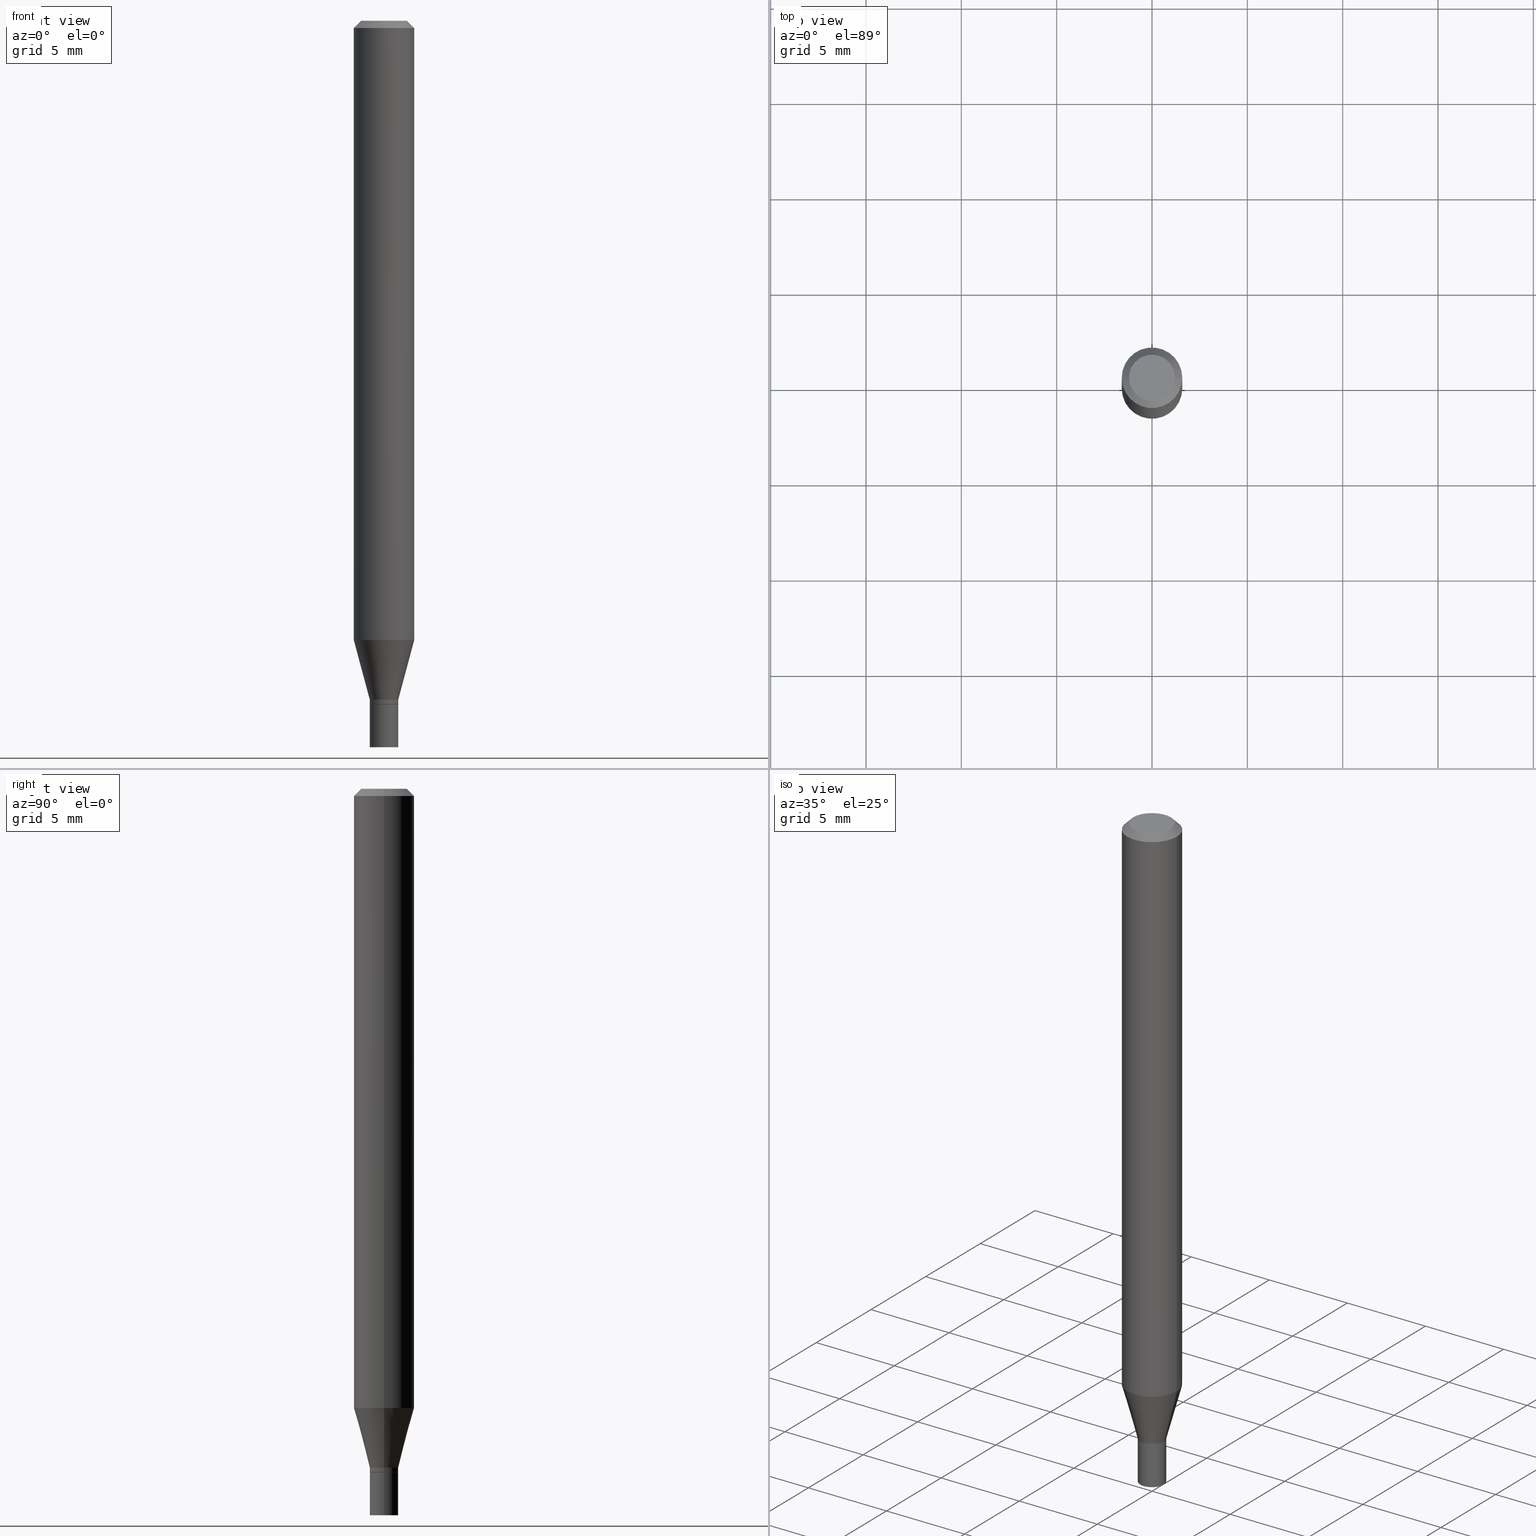
[diagram: canonical four-view strip — front | top / right | iso, engineering-drawing reading convention]
A machine part, canonical four-view strip (front | top / right | iso — engineering-drawing reading convention). The complete STEP part file that produces these views, byte-faithful:
ISO-10303-21;
HEADER;
FILE_DESCRIPTION (( 'STEP AP203' ),
    '1' );
FILE_NAME ('01139.STEP',
    '2024-03-19T23:17:24',
    ( '' ),
    ( '' ),
    'SwSTEP 2.0',
    'SolidWorks 2023',
    '' );
FILE_SCHEMA (( 'CONFIG_CONTROL_DESIGN' ));
ENDSEC;

DATA;
#1 = CARTESIAN_POINT ( 'NONE',  ( 3.427324531868468967E-29, -4.893311096388668563E-15, -1.401499999999999968 ) ) ;
#2 = DIRECTION ( 'NONE',  ( 1.000000000000000000, -6.982962677686265922E-15, 4.876176775795935793E-29 ) ) ;
#3 = CARTESIAN_POINT ( 'NONE',  ( 3.668203209277705088E-31, -5.237222008264718399E-17, -0.01499999999999999944 ) ) ;
#4 = ORIENTED_EDGE ( 'NONE', *, *, #452, .T. ) ;
#5 = EDGE_CURVE ( 'NONE', #227, #418, #371, .T. ) ;
#6 = CARTESIAN_POINT ( 'NONE',  ( -0.02949999999999999845, -4.873113851971679848E-15, -1.500000000000000222 ) ) ;
#7 = ORIENTED_EDGE ( 'NONE', *, *, #247, .F. ) ;
#8 = CIRCLE ( 'NONE', #141, 0.02899999999999999800 ) ;
#9 = CIRCLE ( 'NONE', #326, 0.02949999999999992212 ) ;
#10 = DIRECTION ( 'NONE',  ( -0.7071067811865656694, 7.493145998870420424E-15, 0.7071067811865294761 ) ) ;
#11 = PERSON_AND_ORGANIZATION_ROLE ( 'creator' ) ;
#12 = DIRECTION ( 'NONE',  ( 1.000000000000000000, -6.982962677686250933E-15, 0.000000000000000000 ) ) ;
#13 = CALENDAR_DATE ( 2024, 19, 3 ) ;
#14 = DIRECTION ( 'NONE',  ( -2.445468806185136597E-29, 3.491481338843145583E-15, 1.000000000000000000 ) ) ;
#15 = PERSON_AND_ORGANIZATION_ROLE ( 'design_owner' ) ;
#16 = COORDINATED_UNIVERSAL_TIME_OFFSET ( 5, 0, .BEHIND. ) ;
#17 = DIRECTION ( 'NONE',  ( -2.445468806185136877E-29, 3.491481338843145188E-15, 1.000000000000000000 ) ) ;
#18 = DIRECTION ( 'NONE',  ( -2.445468806185136597E-29, 3.491481338843145583E-15, 1.000000000000000000 ) ) ;
#19 = CYLINDRICAL_SURFACE ( 'NONE', #295, 0.06250000000000000000 ) ;
#20 = VERTEX_POINT ( 'NONE', #462 ) ;
#21 = ORGANIZATION ( 'UNSPECIFIED', 'UNSPECIFIED', '' ) ;
#22 = PERSON ( 'UNSPECIFIED', 'UNSPECIFIED', 'UNSPECIFIED', ('UNSPECIFIED'), ('UNSPECIFIED'), ('UNSPECIFIED') ) ;
#23 = VERTEX_POINT ( 'NONE', #185 ) ;
#24 = ORIENTED_EDGE ( 'NONE', *, *, #209, .T. ) ;
#25 = ORIENTED_EDGE ( 'NONE', *, *, #399, .F. ) ;
#26 = ORIENTED_EDGE ( 'NONE', *, *, #95, .T. ) ;
#27 = CARTESIAN_POINT ( 'NONE',  ( 3.668203209277705088E-31, -5.237222008264718399E-17, -0.01499999999999999944 ) ) ;
#28 = CARTESIAN_POINT ( 'NONE',  ( -0.02949999999999999845, 2.096101070492295438E-16, -1.451085851625197166E-30 ) ) ;
#29 = EDGE_CURVE ( 'NONE', #279, #169, #414, .T. ) ;
#30 = ORIENTED_EDGE ( 'NONE', *, *, #460, .F. ) ;
#31 = CYLINDRICAL_SURFACE ( 'NONE', #137, 0.02949999999999992559 ) ;
#32 = CC_DESIGN_SECURITY_CLASSIFICATION ( #350, ( #168 ) ) ;
#33 = CARTESIAN_POINT ( 'NONE',  ( 3.668203209277705088E-31, -5.237222008264718399E-17, -0.01499999999999999944 ) ) ;
#34 = ADVANCED_FACE ( 'NONE', ( #330 ), #212, .T. ) ;
#35 = CC_DESIGN_PERSON_AND_ORGANIZATION_ASSIGNMENT ( #116, #333, ( #168 ) ) ;
#36 = CARTESIAN_POINT ( 'NONE',  ( -0.02899999999999999800, -4.722168516406670975E-15, -1.411500000000000199 ) ) ;
#37 = ORIENTED_EDGE ( 'NONE', *, *, #314, .T. ) ;
#38 = FACE_OUTER_BOUND ( 'NONE', #48, .T. ) ;
#39 = DIRECTION ( 'NONE',  ( 1.000000000000000000, -6.982962677686250933E-15, 0.000000000000000000 ) ) ;
#40 = DIRECTION ( 'NONE',  ( 2.438088387897960049E-29, -3.491481338843145188E-15, -1.000000000000000000 ) ) ;
#41 = CALENDAR_DATE ( 2024, 19, 3 ) ;
#42 = DIRECTION ( 'NONE',  ( 1.000000000000000000, -6.982962677686250933E-15, 0.000000000000000000 ) ) ;
#43 = CIRCLE ( 'NONE', #269, 0.02949999999999999845 ) ;
#44 = FACE_OUTER_BOUND ( 'NONE', #319, .T. ) ;
#45 = CARTESIAN_POINT ( 'NONE',  ( 3.427324531868468967E-29, -4.893311096388668563E-15, -1.401499999999999968 ) ) ;
#46 = CARTESIAN_POINT ( 'NONE',  ( 0.000000000000000000, 0.000000000000000000, 0.000000000000000000 ) ) ;
#47 = EDGE_CURVE ( 'NONE', #424, #289, #464, .T. ) ;
#48 = EDGE_LOOP ( 'NONE', ( #384, #355, #348, #25 ) ) ;
#49 = PERSON_AND_ORGANIZATION_ROLE ( 'creator' ) ;
#50 = VECTOR ( 'NONE', #235, 39.37007874015748143 ) ;
#51 = ORIENTED_EDGE ( 'NONE', *, *, #47, .F. ) ;
#52 = FACE_OUTER_BOUND ( 'NONE', #135, .T. ) ;
#53 = EDGE_CURVE ( 'NONE', #418, #227, #335, .T. ) ;
#54 = EDGE_LOOP ( 'NONE', ( #60, #77 ) ) ;
#55 = ORIENTED_EDGE ( 'NONE', *, *, #199, .F. ) ;
#56 = AXIS2_PLACEMENT_3D ( 'NONE', #186, #327, #76 ) ;
#57 = EDGE_LOOP ( 'NONE', ( #205, #385, #361, #30 ) ) ;
#58 = CC_DESIGN_DATE_AND_TIME_ASSIGNMENT ( #450, #80, ( #244 ) ) ;
#59 = ADVANCED_FACE ( 'NONE', ( #401 ), #393, .F. ) ;
#60 = ORIENTED_EDGE ( 'NONE', *, *, #104, .T. ) ;
#61 = ORIENTED_EDGE ( 'NONE', *, *, #306, .F. ) ;
#62 = AXIS2_PLACEMENT_3D ( 'NONE', #192, #337, #12 ) ;
#63 = VECTOR ( 'NONE', #119, 39.37007874015748143 ) ;
#64 = DIRECTION ( 'NONE',  ( -2.445468806185136597E-29, 3.491481338843145583E-15, 1.000000000000000000 ) ) ;
#65 = ADVANCED_BREP_SHAPE_REPRESENTATION ( '01139', ( #425, #271, #453 ), #390 ) ;
#66 = DIRECTION ( 'NONE',  ( -1.000000000000000000, 6.982962677686265922E-15, -4.876176775795935793E-29 ) ) ;
#67 = DIRECTION ( 'NONE',  ( 1.000000000000000000, -6.982962677686267499E-15, 4.852736867747366768E-29 ) ) ;
#68 = CARTESIAN_POINT ( 'NONE',  ( 0.02949999999999999845, -5.134223308768844733E-15, -1.411500000000000199 ) ) ;
#69 = DIRECTION ( 'NONE',  ( 1.000000000000000000, -6.982962677686266711E-15, 0.000000000000000000 ) ) ;
#70 = APPLICATION_CONTEXT ( 'configuration controlled 3d designs of mechanical parts and assemblies' ) ;
#71 = LINE ( 'NONE', #28, #438 ) ;
#72 = AXIS2_PLACEMENT_3D ( 'NONE', #334, #328, #2 ) ;
#73 = CC_DESIGN_PERSON_AND_ORGANIZATION_ASSIGNMENT ( #239, #49, ( #244 ) ) ;
#74 = AXIS2_PLACEMENT_3D ( 'NONE', #341, #14, #303 ) ;
#75 = CARTESIAN_POINT ( 'NONE',  ( 0.02949999999999999845, -2.059973989917448413E-16, 1.438472148859800975E-30 ) ) ;
#76 = DIRECTION ( 'NONE',  ( 1.000000000000000000, -6.982962677686266711E-15, 0.000000000000000000 ) ) ;
#77 = ORIENTED_EDGE ( 'NONE', *, *, #83, .T. ) ;
#78 = CARTESIAN_POINT ( 'NONE',  ( 3.451779219930320513E-29, -4.928225909777100212E-15, -1.411500000000000199 ) ) ;
#79 = EDGE_LOOP ( 'NONE', ( #176, #321, #351, #61 ) ) ;
#80 = DATE_TIME_ROLE ( 'creation_date' ) ;
#81 = CARTESIAN_POINT ( 'NONE',  ( -0.06250000000000000000, -4.019219156780646826E-15, -1.278342323350227350 ) ) ;
#82 = UNCERTAINTY_MEASURE_WITH_UNIT (LENGTH_MEASURE( 1.000000000000000082E-05 ), #411, 'distance_accuracy_value', 'NONE');
#83 = EDGE_CURVE ( 'NONE', #317, #173, #286, .T. ) ;
#84 = LINE ( 'NONE', #156, #50 ) ;
#85 = CIRCLE ( 'NONE', #263, 0.02949999999999992212 ) ;
#86 = PERSON_AND_ORGANIZATION ( #22, #21 ) ;
#87 = DIRECTION ( 'NONE',  ( -1.000000000000000000, 6.982962677686265922E-15, -4.876176775795935793E-29 ) ) ;
#88 = DATE_AND_TIME ( #304, #253 ) ;
#89 = APPROVAL_DATE_TIME ( #307, #457 ) ;
#90 = APPROVAL_DATE_TIME ( #88, #162 ) ;
#91 = AXIS2_PLACEMENT_3D ( 'NONE', #196, #446, #238 ) ;
#92 = DIRECTION ( 'NONE',  ( -2.445468806185136597E-29, 3.491481338843145583E-15, 1.000000000000000000 ) ) ;
#93 = EDGE_LOOP ( 'NONE', ( #24, #283, #99, #353 ) ) ;
#94 = ORIENTED_EDGE ( 'NONE', *, *, #183, .T. ) ;
#95 = EDGE_CURVE ( 'NONE', #193, #170, #422, .T. ) ;
#96 = ORIENTED_EDGE ( 'NONE', *, *, #47, .T. ) ;
#97 = AXIS2_PLACEMENT_3D ( 'NONE', #293, #428, #291 ) ;
#98 = VECTOR ( 'NONE', #228, 39.37007874015748143 ) ;
#99 = ORIENTED_EDGE ( 'NONE', *, *, #5, .F. ) ;
#100 = DIRECTION ( 'NONE',  ( -2.445468806185136597E-29, 3.491481338843145583E-15, 1.000000000000000000 ) ) ;
#101 = CARTESIAN_POINT ( 'NONE',  ( 3.450556485527228832E-29, -4.926480169107679497E-15, -1.411000000000000254 ) ) ;
#102 = LOCAL_TIME ( 19, 17, 24.00000000000000000, #200 ) ;
#103 = DIRECTION ( 'NONE',  ( 1.000000000000000000, -6.982962677686267499E-15, 4.852736867747366768E-29 ) ) ;
#104 = EDGE_CURVE ( 'NONE', #173, #317, #349, .T. ) ;
#105 = DIRECTION ( 'NONE',  ( 2.445468806185136597E-29, -3.491481338843145583E-15, -1.000000000000000000 ) ) ;
#106 = DIRECTION ( 'NONE',  ( 1.000000000000000000, -6.982962677686266711E-15, 0.000000000000000000 ) ) ;
#107 = LINE ( 'NONE', #394, #98 ) ;
#108 = CARTESIAN_POINT ( 'NONE',  ( 3.126146275379214659E-29, -4.463308366630709442E-15, -1.278342323350227350 ) ) ;
#109 = ADVANCED_FACE ( 'NONE', ( #182 ), #218, .T. ) ;
#110 = CARTESIAN_POINT ( 'NONE',  ( 0.06250000000000000000, -4.888073874380388472E-16, -0.01499999999999999944 ) ) ;
#111 = AXIS2_PLACEMENT_3D ( 'NONE', #108, #430, #256 ) ;
#112 = AXIS2_PLACEMENT_3D ( 'NONE', #429, #142, #290 ) ;
#113 = AXIS2_PLACEMENT_3D ( 'NONE', #46, #198, #147 ) ;
#114 = CARTESIAN_POINT ( 'NONE',  ( 3.668203209277704895E-29, -5.237222008264718177E-15, -1.500000000000000222 ) ) ;
#115 = DIRECTION ( 'NONE',  ( 1.000000000000000000, -6.982962677686266711E-15, 0.000000000000000000 ) ) ;
#116 = PERSON_AND_ORGANIZATION ( #22, #21 ) ;
#117 = DIRECTION ( 'NONE',  ( 2.438088387897960049E-29, -3.491481338843145188E-15, -1.000000000000000000 ) ) ;
#118 = EDGE_CURVE ( 'NONE', #23, #279, #285, .T. ) ;
#119 = DIRECTION ( 'NONE',  ( -2.445468806185136877E-29, 3.491481338843145188E-15, 1.000000000000000000 ) ) ;
#120 = PERSON_AND_ORGANIZATION ( #22, #21 ) ;
#121 = CARTESIAN_POINT ( 'NONE',  ( 0.06250000000000000000, -4.899743533986101112E-15, -1.278342323350227350 ) ) ;
#122 = CARTESIAN_POINT ( 'NONE',  ( 0.000000000000000000, 0.000000000000000000, 0.000000000000000000 ) ) ;
#123 = APPROVAL_ROLE ( '' ) ;
#124 = FACE_OUTER_BOUND ( 'NONE', #229, .T. ) ;
#125 = AXIS2_PLACEMENT_3D ( 'NONE', #368, #40, #66 ) ;
#126 = LINE ( 'NONE', #203, #243 ) ;
#127 = LENGTH_MEASURE_WITH_UNIT ( LENGTH_MEASURE( 0.02539999999999999897 ), #155 );
#128 = APPROVAL_STATUS ( 'not_yet_approved' ) ;
#129 = DIRECTION ( 'NONE',  ( 1.000000000000000000, -6.982962677686268288E-15, 0.000000000000000000 ) ) ;
#130 = AXIS2_PLACEMENT_3D ( 'NONE', #27, #179, #106 ) ;
#131 = ORIENTED_EDGE ( 'NONE', *, *, #314, .F. ) ;
#132 = EDGE_CURVE ( 'NONE', #367, #221, #8, .T. ) ;
#133 = EDGE_LOOP ( 'NONE', ( #386, #139, #346, #461 ) ) ;
#134 = ORIENTED_EDGE ( 'NONE', *, *, #421, .T. ) ;
#135 = EDGE_LOOP ( 'NONE', ( #248, #264, #37, #315 ) ) ;
#136 = AXIS2_PLACEMENT_3D ( 'NONE', #403, #300, #375 ) ;
#137 = AXIS2_PLACEMENT_3D ( 'NONE', #240, #18, #451 ) ;
#138 = EDGE_CURVE ( 'NONE', #424, #359, #397, .T. ) ;
#139 = ORIENTED_EDGE ( 'NONE', *, *, #388, .T. ) ;
#140 = CARTESIAN_POINT ( 'NONE',  ( 3.584916967085606921E-29, -5.356492647442320375E-15, -1.500000000000000222 ) ) ;
#141 = AXIS2_PLACEMENT_3D ( 'NONE', #426, #100, #260 ) ;
#142 = DIRECTION ( 'NONE',  ( -2.445468806185136597E-29, 3.491481338843145583E-15, 1.000000000000000000 ) ) ;
#143 = LOCAL_TIME ( 19, 17, 24.00000000000000000, #16 ) ;
#144 = DIRECTION ( 'NONE',  ( -2.445468806185136597E-29, 3.491481338843145583E-15, 1.000000000000000000 ) ) ;
#145 = DIRECTION ( 'NONE',  ( -0.2588190451025216832, 5.211531920934551831E-15, 0.9659258262890679791 ) ) ;
#146 = EDGE_LOOP ( 'NONE', ( #55, #436, #211, #391 ) ) ;
#147 = DIRECTION ( 'NONE',  ( 1.000000000000000000, -6.982962677686267499E-15, 4.876176775795935793E-29 ) ) ;
#148 = CARTESIAN_POINT ( 'NONE',  ( 3.427324531868468967E-29, -4.893311096388668563E-15, -1.401499999999999968 ) ) ;
#149 = DIRECTION ( 'NONE',  ( 1.000000000000000000, -6.982962677686265922E-15, 4.876176775795935793E-29 ) ) ;
#150 = CIRCLE ( 'NONE', #56, 0.02899999999999999800 ) ;
#151 = DIRECTION ( 'NONE',  ( -2.445468806185136597E-29, 3.491481338843145583E-15, 1.000000000000000000 ) ) ;
#152 = LINE ( 'NONE', #296, #459 ) ;
#153 = SECURITY_CLASSIFICATION_LEVEL ( 'unclassified' ) ;
#154 = CYLINDRICAL_SURFACE ( 'NONE', #74, 0.06250000000000000000 ) ;
#155 =( LENGTH_UNIT ( ) NAMED_UNIT ( * ) SI_UNIT ( $, .METRE. ) );
#156 = CARTESIAN_POINT ( 'NONE',  ( 0.06250000000000000000, -4.811533449433679005E-16, -0.01499999999999999944 ) ) ;
#157 = CC_DESIGN_DATE_AND_TIME_ASSIGNMENT ( #442, #345, ( #350 ) ) ;
#158 = DIRECTION ( 'NONE',  ( -2.438088387897960049E-29, 3.491481338843145188E-15, 1.000000000000000000 ) ) ;
#159 = CALENDAR_DATE ( 2024, 19, 3 ) ;
#160 = LINE ( 'NONE', #342, #275 ) ;
#161 = AXIS2_PLACEMENT_3D ( 'NONE', #78, #357, #115 ) ;
#162 = APPROVAL ( #236, 'UNSPECIFIED' ) ;
#163 = DIRECTION ( 'NONE',  ( -2.445468806185136597E-29, 3.491481338843145583E-15, 1.000000000000000000 ) ) ;
#164 = ADVANCED_FACE ( 'NONE', ( #407 ), #343, .T. ) ;
#165 = EDGE_CURVE ( 'NONE', #367, #23, #266, .T. ) ;
#166 = DIRECTION ( 'NONE',  ( 0.000000000000000000, 0.000000000000000000, 1.000000000000000000 ) ) ;
#167 = AXIS2_PLACEMENT_3D ( 'NONE', #33, #322, #69 ) ;
#168 = PRODUCT_DEFINITION_FORMATION_WITH_SPECIFIED_SOURCE ( 'ANY', '', #249, .NOT_KNOWN. ) ;
#169 = VERTEX_POINT ( 'NONE', #308 ) ;
#170 = VERTEX_POINT ( 'NONE', #121 ) ;
#171 = ORIENTED_EDGE ( 'NONE', *, *, #388, .F. ) ;
#172 = EDGE_CURVE ( 'NONE', #193, #418, #160, .T. ) ;
#173 = VERTEX_POINT ( 'NONE', #267 ) ;
#174 = ORIENTED_EDGE ( 'NONE', *, *, #53, .F. ) ;
#175 = AXIS2_PLACEMENT_3D ( 'NONE', #3, #105, #257 ) ;
#176 = ORIENTED_EDGE ( 'NONE', *, *, #358, .F. ) ;
#177 = APPROVAL ( #234, 'UNSPECIFIED' ) ;
#178 = FACE_OUTER_BOUND ( 'NONE', #79, .T. ) ;
#179 = DIRECTION ( 'NONE',  ( -2.445468806185136597E-29, 3.491481338843145583E-15, 1.000000000000000000 ) ) ;
#180 = DIRECTION ( 'NONE',  ( -2.445468806185136597E-29, 3.491481338843145583E-15, 1.000000000000000000 ) ) ;
#181 = CC_DESIGN_APPROVAL ( #177, ( #168 ) ) ;
#182 = FACE_OUTER_BOUND ( 'NONE', #352, .T. ) ;
#183 = EDGE_CURVE ( 'NONE', #359, #458, #398, .T. ) ;
#184 = CARTESIAN_POINT ( 'NONE',  ( 0.02949999999999999845, -5.443219407256462698E-15, -1.500000000000000222 ) ) ;
#185 = CARTESIAN_POINT ( 'NONE',  ( 0.02949999999999992212, -5.132477568099423229E-15, -1.411000000000000254 ) ) ;
#186 = CARTESIAN_POINT ( 'NONE',  ( 3.451779219930320513E-29, -4.928225909777100212E-15, -1.411500000000000199 ) ) ;
#187 = CC_DESIGN_PERSON_AND_ORGANIZATION_ASSIGNMENT ( #299, #237, ( #350 ) ) ;
#188 = APPROVAL_DATE_TIME ( #410, #177 ) ;
#189 = DIRECTION ( 'NONE',  ( -2.445468806185136597E-29, 3.491481338843145583E-15, 1.000000000000000000 ) ) ;
#190 = CYLINDRICAL_SURFACE ( 'NONE', #233, 0.02949999999999999845 ) ;
#191 = APPROVAL_PERSON_ORGANIZATION ( #86, #162, #376 ) ;
#192 = CARTESIAN_POINT ( 'NONE',  ( 3.451779219930320513E-29, -4.928225909777100212E-15, -1.411500000000000199 ) ) ;
#193 = VERTEX_POINT ( 'NONE', #81 ) ;
#194 = MECHANICAL_CONTEXT ( 'NONE', #419, 'mechanical' ) ;
#195 = ADVANCED_FACE ( 'NONE', ( #297 ), #404, .F. ) ;
#196 = CARTESIAN_POINT ( 'NONE',  ( 3.126146275379214659E-29, -4.463308366630709442E-15, -1.278342323350227350 ) ) ;
#197 = COORDINATED_UNIVERSAL_TIME_OFFSET ( 5, 0, .BEHIND. ) ;
#198 = DIRECTION ( 'NONE',  ( -2.445468806185136597E-29, 3.491481338843145583E-15, 1.000000000000000000 ) ) ;
#199 = EDGE_CURVE ( 'NONE', #317, #227, #84, .T. ) ;
#200 = COORDINATED_UNIVERSAL_TIME_OFFSET ( 5, 0, .BEHIND. ) ;
#201 = AXIS2_PLACEMENT_3D ( 'NONE', #148, #64, #252 ) ;
#202 = CONICAL_SURFACE ( 'NONE', #175, 0.06250000000000000000, 0.7853981633974567167 ) ;
#203 = CARTESIAN_POINT ( 'NONE',  ( -0.06250000000000000000, 3.840629472727444916E-16, -0.01499999999999999944 ) ) ;
#204 = DIRECTION ( 'NONE',  ( 1.000000000000000000, -6.982962677686265922E-15, 4.876176775795935793E-29 ) ) ;
#205 = ORIENTED_EDGE ( 'NONE', *, *, #83, .F. ) ;
#206 = AXIS2_PLACEMENT_3D ( 'NONE', #440, #117, #87 ) ;
#207 = APPROVAL_PERSON_ORGANIZATION ( #120, #457, #374 ) ;
#208 = EDGE_LOOP ( 'NONE', ( #94, #251 ) ) ;
#209 = EDGE_CURVE ( 'NONE', #170, #193, #294, .T. ) ;
#210 = ORIENTED_EDGE ( 'NONE', *, *, #29, .T. ) ;
#211 = ORIENTED_EDGE ( 'NONE', *, *, #460, .T. ) ;
#212 = CONICAL_SURFACE ( 'NONE', #97, 0.06250000000000000000, 0.7853981633974567167 ) ;
#213 = EDGE_LOOP ( 'NONE', ( #210, #365, #420, #131 ) ) ;
#214 = EDGE_CURVE ( 'NONE', #458, #359, #354, .T. ) ;
#215 = CARTESIAN_POINT ( 'NONE',  ( 0.02949999999999992559, -2.059973989917443730E-16, 1.438472148859797472E-30 ) ) ;
#216 = ADVANCED_FACE ( 'NONE', ( #44 ), #154, .T. ) ;
#217 = CARTESIAN_POINT ( 'NONE',  ( 0.02899999999999999800, -5.130731827430002515E-15, -1.411500000000000199 ) ) ;
#218 = CYLINDRICAL_SURFACE ( 'NONE', #72, 0.02949999999999999845 ) ;
#219 = DIRECTION ( 'NONE',  ( -2.445468806185136597E-29, 3.491481338843145583E-15, 1.000000000000000000 ) ) ;
#220 = ADVANCED_FACE ( 'NONE', ( #124 ), #270, .T. ) ;
#221 = VERTEX_POINT ( 'NONE', #364 ) ;
#222 = VECTOR ( 'NONE', #443, 39.37007874015748143 ) ;
#223 = PLANE ( 'NONE',  #125 ) ;
#224 = AXIS2_PLACEMENT_3D ( 'NONE', #274, #158, #204 ) ;
#225 = ORIENTED_EDGE ( 'NONE', *, *, #138, .F. ) ;
#226 = DIRECTION ( 'NONE',  ( -2.445468806185136877E-29, 3.491481338843145188E-15, 1.000000000000000000 ) ) ;
#227 = VERTEX_POINT ( 'NONE', #110 ) ;
#228 = DIRECTION ( 'NONE',  ( -2.445468806185136877E-29, 3.491481338843145188E-15, 1.000000000000000000 ) ) ;
#229 = EDGE_LOOP ( 'NONE', ( #134, #284, #408, #383 ) ) ;
#230 = PERSON_AND_ORGANIZATION ( #22, #21 ) ;
#231 = CARTESIAN_POINT ( 'NONE',  ( 0.02899999999999999800, -5.130731827430002515E-15, -1.411500000000000199 ) ) ;
#232 = EDGE_CURVE ( 'NONE', #169, #193, #396, .T. ) ;
#233 = AXIS2_PLACEMENT_3D ( 'NONE', #288, #435, #149 ) ;
#234 = APPROVAL_STATUS ( 'not_yet_approved' ) ;
#235 = DIRECTION ( 'NONE',  ( 0.7071067811865534569, -7.319954787623276556E-15, -0.7071067811865415775 ) ) ;
#236 = APPROVAL_STATUS ( 'not_yet_approved' ) ;
#237 = PERSON_AND_ORGANIZATION_ROLE ( 'classification_officer' ) ;
#238 = DIRECTION ( 'NONE',  ( 1.000000000000000000, -6.982962677686262766E-15, 0.000000000000000000 ) ) ;
#239 = PERSON_AND_ORGANIZATION ( #22, #21 ) ;
#240 = CARTESIAN_POINT ( 'NONE',  ( 0.000000000000000000, 0.000000000000000000, 0.000000000000000000 ) ) ;
#241 = VECTOR ( 'NONE', #356, 39.37007874015748143 ) ;
#242 = PERSON_AND_ORGANIZATION ( #22, #21 ) ;
#243 = VECTOR ( 'NONE', #347, 39.37007874015748143 ) ;
#244 = PRODUCT_DEFINITION ( 'UNKNOWN', '', #168, #373 ) ;
#245 = ORIENTED_EDGE ( 'NONE', *, *, #172, .F. ) ;
#246 = ORIENTED_EDGE ( 'NONE', *, *, #132, .F. ) ;
#247 = EDGE_CURVE ( 'NONE', #221, #367, #150, .T. ) ;
#248 = ORIENTED_EDGE ( 'NONE', *, *, #232, .F. ) ;
#249 = PRODUCT ( '01139', '01139', '', ( #194 ) ) ;
#250 = PRODUCT_RELATED_PRODUCT_CATEGORY ( 'detail', '', ( #249 ) ) ;
#251 = ORIENTED_EDGE ( 'NONE', *, *, #214, .T. ) ;
#252 = DIRECTION ( 'NONE',  ( 1.000000000000000000, -6.982962677686268288E-15, 0.000000000000000000 ) ) ;
#253 = LOCAL_TIME ( 19, 17, 24.00000000000000000, #197 ) ;
#254 = CARTESIAN_POINT ( 'NONE',  ( -0.06250000000000000000, -1.813751083506615842E-15, -0.01499999999999999944 ) ) ;
#255 = CC_DESIGN_PERSON_AND_ORGANIZATION_ASSIGNMENT ( #230, #11, ( #168 ) ) ;
#256 = DIRECTION ( 'NONE',  ( 1.000000000000000000, -6.982962677686262766E-15, 0.000000000000000000 ) ) ;
#257 = DIRECTION ( 'NONE',  ( -1.000000000000000000, 6.982962677686266711E-15, 0.000000000000000000 ) ) ;
#258 = DIRECTION ( 'NONE',  ( 1.000000000000000000, -6.982962677686265922E-15, 4.876176775795935793E-29 ) ) ;
#259 = LINE ( 'NONE', #36, #372 ) ;
#260 = DIRECTION ( 'NONE',  ( 1.000000000000000000, -6.982962677686266711E-15, 0.000000000000000000 ) ) ;
#261 = AXIS2_PLACEMENT_3D ( 'NONE', #377, #151, #42 ) ;
#262 = DIRECTION ( 'NONE',  ( 0.2588190451025216832, 1.565188264969619798E-15, 0.9659258262890679791 ) ) ;
#263 = AXIS2_PLACEMENT_3D ( 'NONE', #101, #219, #360 ) ;
#264 = ORIENTED_EDGE ( 'NONE', *, *, #306, .T. ) ;
#265 = DIRECTION ( 'NONE',  ( 1.000000000000000000, -6.982962677686268288E-15, 0.000000000000000000 ) ) ;
#266 = LINE ( 'NONE', #231, #222 ) ;
#267 = CARTESIAN_POINT ( 'NONE',  ( -0.04749999999999999362, 3.578768372314206562E-16, -2.491828921680056300E-16 ) ) ;
#268 = PERSON_AND_ORGANIZATION ( #22, #21 ) ;
#269 = AXIS2_PLACEMENT_3D ( 'NONE', #329, #298, #400 ) ;
#270 = CYLINDRICAL_SURFACE ( 'NONE', #113, 0.02949999999999992559 ) ;
#271 = MANIFOLD_SOLID_BREP ( 'Body-Move/Copy2[2]', #318 ) ;
#272 = CARTESIAN_POINT ( 'NONE',  ( 0.000000000000000000, 0.000000000000000000, 0.000000000000000000 ) ) ;
#273 = SHAPE_DEFINITION_REPRESENTATION ( #332, #65 ) ;
#274 = CARTESIAN_POINT ( 'NONE',  ( 3.451779219930320513E-29, -4.928225909777100212E-15, -1.411500000000000199 ) ) ;
#275 = VECTOR ( 'NONE', #370, 39.37007874015748143 ) ;
#276 = CIRCLE ( 'NONE', #416, 0.02949999999999992559 ) ;
#277 = ORIENTED_EDGE ( 'NONE', *, *, #312, .T. ) ;
#278 = DIMENSIONAL_EXPONENTS ( 1.000000000000000000, 0.000000000000000000, 0.000000000000000000, 0.000000000000000000, 0.000000000000000000, 0.000000000000000000, 0.000000000000000000 ) ;
#279 = VERTEX_POINT ( 'NONE', #336 ) ;
#280 = ORIENTED_EDGE ( 'NONE', *, *, #421, .F. ) ;
#281 = CC_DESIGN_PERSON_AND_ORGANIZATION_ASSIGNMENT ( #268, #15, ( #249 ) ) ;
#282 = CLOSED_SHELL ( 'NONE', ( #109, #59, #309, #427 ) ) ;
#283 = ORIENTED_EDGE ( 'NONE', *, *, #172, .T. ) ;
#284 = ORIENTED_EDGE ( 'NONE', *, *, #358, .T. ) ;
#285 = LINE ( 'NONE', #215, #241 ) ;
#286 = CIRCLE ( 'NONE', #362, 0.04749999999999999362 ) ;
#287 = APPROVAL_PERSON_ORGANIZATION ( #242, #177, #123 ) ;
#288 = CARTESIAN_POINT ( 'NONE',  ( 0.000000000000000000, 0.000000000000000000, 0.000000000000000000 ) ) ;
#289 = VERTEX_POINT ( 'NONE', #6 ) ;
#290 = DIRECTION ( 'NONE',  ( 1.000000000000000000, -6.982962677686266711E-15, 0.000000000000000000 ) ) ;
#291 = DIRECTION ( 'NONE',  ( -1.000000000000000000, 6.982962677686266711E-15, 0.000000000000000000 ) ) ;
#292 = DIRECTION ( 'NONE',  ( -2.445468806185136597E-29, 3.491481338843145583E-15, 1.000000000000000000 ) ) ;
#293 = CARTESIAN_POINT ( 'NONE',  ( 3.668203209277705088E-31, -5.237222008264718399E-17, -0.01499999999999999944 ) ) ;
#294 = CIRCLE ( 'NONE', #91, 0.06250000000000000000 ) ;
#295 = AXIS2_PLACEMENT_3D ( 'NONE', #272, #92, #409 ) ;
#296 = CARTESIAN_POINT ( 'NONE',  ( 0.02949999999999992559, -5.099308495380413084E-15, -1.401499999999999968 ) ) ;
#297 = FACE_OUTER_BOUND ( 'NONE', #54, .T. ) ;
#298 = DIRECTION ( 'NONE',  ( -2.445468806185136597E-29, 3.491481338843145583E-15, 1.000000000000000000 ) ) ;
#299 = PERSON_AND_ORGANIZATION ( #22, #21 ) ;
#300 = DIRECTION ( 'NONE',  ( -2.445468806185136597E-29, 3.491481338843145583E-15, 1.000000000000000000 ) ) ;
#301 = LINE ( 'NONE', #415, #63 ) ;
#302 = COORDINATED_UNIVERSAL_TIME_OFFSET ( 5, 0, .BEHIND. ) ;
#303 = DIRECTION ( 'NONE',  ( 1.000000000000000000, -6.982962677686266711E-15, 4.876176775795935793E-29 ) ) ;
#304 = CALENDAR_DATE ( 2024, 19, 3 ) ;
#305 = AXIS2_PLACEMENT_3D ( 'NONE', #114, #466, #39 ) ;
#306 = EDGE_CURVE ( 'NONE', #169, #279, #276, .T. ) ;
#307 = DATE_AND_TIME ( #159, #465 ) ;
#308 = CARTESIAN_POINT ( 'NONE',  ( -0.02949999999999992559, -4.351460073060043416E-15, -1.401499999999999968 ) ) ;
#309 = ADVANCED_FACE ( 'NONE', ( #402 ), #190, .T. ) ;
#310 = PLANE ( 'NONE',  #224 ) ;
#311 = CARTESIAN_POINT ( 'NONE',  ( -0.02949999999999999845, -4.873113851971679848E-15, -1.411500000000000199 ) ) ;
#312 = EDGE_CURVE ( 'NONE', #221, #20, #259, .T. ) ;
#313 = CC_DESIGN_APPROVAL ( #162, ( #244 ) ) ;
#314 = EDGE_CURVE ( 'NONE', #279, #170, #152, .T. ) ;
#315 = ORIENTED_EDGE ( 'NONE', *, *, #95, .F. ) ;
#316 = ORIENTED_EDGE ( 'NONE', *, *, #413, .T. ) ;
#317 = VERTEX_POINT ( 'NONE', #439 ) ;
#318 = CLOSED_SHELL ( 'NONE', ( #220, #340, #325, #454, #164, #432, #216, #34, #195, #444, #320, #431 ) ) ;
#319 = EDGE_LOOP ( 'NONE', ( #245, #26, #4, #174 ) ) ;
#320 = ADVANCED_FACE ( 'NONE', ( #38 ), #382, .T. ) ;
#321 = ORIENTED_EDGE ( 'NONE', *, *, #399, .T. ) ;
#322 = DIRECTION ( 'NONE',  ( -2.445468806185136597E-29, 3.491481338843145583E-15, 1.000000000000000000 ) ) ;
#323 = FACE_OUTER_BOUND ( 'NONE', #208, .T. ) ;
#324 = DIRECTION ( 'NONE',  ( -2.438088387897960049E-29, 3.491481338843145188E-15, 1.000000000000000000 ) ) ;
#325 = ADVANCED_FACE ( 'NONE', ( #463 ), #202, .T. ) ;
#326 = AXIS2_PLACEMENT_3D ( 'NONE', #392, #180, #366 ) ;
#327 = DIRECTION ( 'NONE',  ( -2.445468806185136597E-29, 3.491481338843145583E-15, 1.000000000000000000 ) ) ;
#328 = DIRECTION ( 'NONE',  ( -2.445468806185136597E-29, 3.491481338843145583E-15, 1.000000000000000000 ) ) ;
#329 = CARTESIAN_POINT ( 'NONE',  ( 3.668203209277704895E-29, -5.237222008264718177E-15, -1.500000000000000222 ) ) ;
#330 = FACE_OUTER_BOUND ( 'NONE', #146, .T. ) ;
#331 = CARTESIAN_POINT ( 'NONE',  ( -0.02949999999999992559, -4.683700989339440005E-15, -1.401499999999999968 ) ) ;
#332 = PRODUCT_DEFINITION_SHAPE ( 'NONE', 'NONE',  #244 ) ;
#333 = PERSON_AND_ORGANIZATION_ROLE ( 'design_supplier' ) ;
#334 = CARTESIAN_POINT ( 'NONE',  ( 0.000000000000000000, 0.000000000000000000, 0.000000000000000000 ) ) ;
#335 = CIRCLE ( 'NONE', #130, 0.06250000000000000000 ) ;
#336 = CARTESIAN_POINT ( 'NONE',  ( 0.02949999999999992559, -5.099308495380413084E-15, -1.401499999999999968 ) ) ;
#337 = DIRECTION ( 'NONE',  ( -2.445468806185136597E-29, 3.491481338843145583E-15, 1.000000000000000000 ) ) ;
#338 = ORIENTED_EDGE ( 'NONE', *, *, #183, .F. ) ;
#339 =( NAMED_UNIT ( * ) SI_UNIT ( $, .STERADIAN. ) SOLID_ANGLE_UNIT ( ) );
#340 = ADVANCED_FACE ( 'NONE', ( #433 ), #363, .T. ) ;
#341 = CARTESIAN_POINT ( 'NONE',  ( 0.000000000000000000, 0.000000000000000000, 0.000000000000000000 ) ) ;
#342 = CARTESIAN_POINT ( 'NONE',  ( -0.06250000000000000000, 4.440892098500626162E-16, -3.074334431409316114E-30 ) ) ;
#343 = CONICAL_SURFACE ( 'NONE', #136, 0.02949999999999992559, 0.2617993877991502960 ) ;
#344 = VECTOR ( 'NONE', #145, 39.37007874015748143 ) ;
#345 = DATE_TIME_ROLE ( 'classification_date' ) ;
#346 = ORIENTED_EDGE ( 'NONE', *, *, #138, .T. ) ;
#347 = DIRECTION ( 'NONE',  ( -0.7071067811865534569, 2.468850131082318986E-15, -0.7071067811865415775 ) ) ;
#348 = ORIENTED_EDGE ( 'NONE', *, *, #165, .T. ) ;
#349 = CIRCLE ( 'NONE', #437, 0.04749999999999999362 ) ;
#350 = SECURITY_CLASSIFICATION ( '', '', #153 ) ;
#351 = ORIENTED_EDGE ( 'NONE', *, *, #118, .T. ) ;
#352 = EDGE_LOOP ( 'NONE', ( #96, #316, #338, #225 ) ) ;
#353 = ORIENTED_EDGE ( 'NONE', *, *, #452, .F. ) ;
#354 = CIRCLE ( 'NONE', #62, 0.02949999999999999845 ) ;
#355 = ORIENTED_EDGE ( 'NONE', *, *, #247, .T. ) ;
#356 = DIRECTION ( 'NONE',  ( -2.445468806185136877E-29, 3.491481338843145188E-15, 1.000000000000000000 ) ) ;
#357 = DIRECTION ( 'NONE',  ( -2.445468806185136597E-29, 3.491481338843145583E-15, 1.000000000000000000 ) ) ;
#358 = EDGE_CURVE ( 'NONE', #20, #169, #107, .T. ) ;
#359 = VERTEX_POINT ( 'NONE', #68 ) ;
#360 = DIRECTION ( 'NONE',  ( 1.000000000000000000, -6.982962677686269077E-15, 0.000000000000000000 ) ) ;
#361 = ORIENTED_EDGE ( 'NONE', *, *, #5, .T. ) ;
#362 = AXIS2_PLACEMENT_3D ( 'NONE', #434, #144, #103 ) ;
#363 = CONICAL_SURFACE ( 'NONE', #161, 0.02899999999999999800, 0.7853981633974739252 ) ;
#364 = CARTESIAN_POINT ( 'NONE',  ( -0.02899999999999999800, -4.719519289232561352E-15, -1.411500000000000199 ) ) ;
#365 = ORIENTED_EDGE ( 'NONE', *, *, #232, .T. ) ;
#366 = DIRECTION ( 'NONE',  ( 1.000000000000000000, -6.982962677686269077E-15, 0.000000000000000000 ) ) ;
#367 = VERTEX_POINT ( 'NONE', #217 ) ;
#368 = CARTESIAN_POINT ( 'NONE',  ( 2.059973989917793540E-16, 0.02949999999999506836, -1.411500000000000199 ) ) ;
#369 = COORDINATED_UNIVERSAL_TIME_OFFSET ( 5, 0, .BEHIND. ) ;
#370 = DIRECTION ( 'NONE',  ( -2.445468806185136877E-29, 3.491481338843145188E-15, 1.000000000000000000 ) ) ;
#371 = CIRCLE ( 'NONE', #167, 0.06250000000000000000 ) ;
#372 = VECTOR ( 'NONE', #10, 39.37007874015748143 ) ;
#373 = DESIGN_CONTEXT ( 'detailed design', #70, 'design' ) ;
#374 = APPROVAL_ROLE ( '' ) ;
#375 = DIRECTION ( 'NONE',  ( 1.000000000000000000, -6.982962677686268288E-15, 0.000000000000000000 ) ) ;
#376 = APPROVAL_ROLE ( '' ) ;
#377 = CARTESIAN_POINT ( 'NONE',  ( 3.451779219930320513E-29, -4.928225909777100212E-15, -1.411500000000000199 ) ) ;
#378 = EDGE_LOOP ( 'NONE', ( #246, #7 ) ) ;
#379 = APPLICATION_PROTOCOL_DEFINITION ( 'international standard', 'config_control_design', 1994, #419 ) ;
#380 = FACE_OUTER_BOUND ( 'NONE', #93, .T. ) ;
#381 = CONICAL_SURFACE ( 'NONE', #423, 0.02949999999999992559, 0.2617993877991502960 ) ;
#382 = CONICAL_SURFACE ( 'NONE', #112, 0.02899999999999999800, 0.7853981633974739252 ) ;
#383 = ORIENTED_EDGE ( 'NONE', *, *, #118, .F. ) ;
#384 = ORIENTED_EDGE ( 'NONE', *, *, #312, .F. ) ;
#385 = ORIENTED_EDGE ( 'NONE', *, *, #199, .T. ) ;
#386 = ORIENTED_EDGE ( 'NONE', *, *, #413, .F. ) ;
#387 = EDGE_LOOP ( 'NONE', ( #455, #277, #280, #417 ) ) ;
#388 = EDGE_CURVE ( 'NONE', #289, #424, #43, .T. ) ;
#389 = AXIS2_PLACEMENT_3D ( 'NONE', #140, #324, #258 ) ;
#390 =( GEOMETRIC_REPRESENTATION_CONTEXT ( 3 ) GLOBAL_UNCERTAINTY_ASSIGNED_CONTEXT ( ( #82 ) ) GLOBAL_UNIT_ASSIGNED_CONTEXT ( ( #411, #449, #339 ) ) REPRESENTATION_CONTEXT ( 'NONE', 'WORKASPACE' ) );
#391 = ORIENTED_EDGE ( 'NONE', *, *, #53, .T. ) ;
#392 = CARTESIAN_POINT ( 'NONE',  ( 3.450556485527228832E-29, -4.926480169107679497E-15, -1.411000000000000254 ) ) ;
#393 = PLANE ( 'NONE',  #389 ) ;
#394 = CARTESIAN_POINT ( 'NONE',  ( -0.02949999999999992559, 2.096101070492290261E-16, -1.451085851625193488E-30 ) ) ;
#395 = CARTESIAN_POINT ( 'NONE',  ( 6.093689898318465335E-45, -8.700174179635472181E-31, -2.491828921680032634E-16 ) ) ;
#396 = LINE ( 'NONE', #331, #344 ) ;
#397 = LINE ( 'NONE', #75, #447 ) ;
#398 = CIRCLE ( 'NONE', #261, 0.02949999999999999845 ) ;
#399 = EDGE_CURVE ( 'NONE', #20, #23, #85, .T. ) ;
#400 = DIRECTION ( 'NONE',  ( 1.000000000000000000, -6.982962677686250933E-15, 0.000000000000000000 ) ) ;
#401 = FACE_OUTER_BOUND ( 'NONE', #456, .T. ) ;
#402 = FACE_OUTER_BOUND ( 'NONE', #133, .T. ) ;
#403 = CARTESIAN_POINT ( 'NONE',  ( 3.427324531868468967E-29, -4.893311096388668563E-15, -1.401499999999999968 ) ) ;
#404 = PLANE ( 'NONE',  #206 ) ;
#405 = LOCAL_TIME ( 19, 17, 24.00000000000000000, #369 ) ;
#406 = APPLICATION_PROTOCOL_DEFINITION ( 'international standard', 'config_control_design', 1994, #70 ) ;
#407 = FACE_OUTER_BOUND ( 'NONE', #213, .T. ) ;
#408 = ORIENTED_EDGE ( 'NONE', *, *, #29, .F. ) ;
#409 = DIRECTION ( 'NONE',  ( 1.000000000000000000, -6.982962677686266711E-15, 4.876176775795935793E-29 ) ) ;
#410 = DATE_AND_TIME ( #41, #405 ) ;
#411 =( CONVERSION_BASED_UNIT ( 'INCH', #127 ) LENGTH_UNIT ( ) NAMED_UNIT ( #278 ) );
#412 = CALENDAR_DATE ( 2024, 19, 3 ) ;
#413 = EDGE_CURVE ( 'NONE', #289, #458, #71, .T. ) ;
#414 = CIRCLE ( 'NONE', #201, 0.02949999999999992559 ) ;
#415 = CARTESIAN_POINT ( 'NONE',  ( 0.06250000000000000000, -4.364351673553916694E-16, 3.047610484872459871E-30 ) ) ;
#416 = AXIS2_PLACEMENT_3D ( 'NONE', #1, #292, #265 ) ;
#417 = ORIENTED_EDGE ( 'NONE', *, *, #165, .F. ) ;
#418 = VERTEX_POINT ( 'NONE', #254 ) ;
#419 = APPLICATION_CONTEXT ( 'configuration controlled 3d designs of mechanical parts and assemblies' ) ;
#420 = ORIENTED_EDGE ( 'NONE', *, *, #209, .F. ) ;
#421 = EDGE_CURVE ( 'NONE', #23, #20, #9, .T. ) ;
#422 = CIRCLE ( 'NONE', #111, 0.06250000000000000000 ) ;
#423 = AXIS2_PLACEMENT_3D ( 'NONE', #45, #163, #129 ) ;
#424 = VERTEX_POINT ( 'NONE', #184 ) ;
#425 = MANIFOLD_SOLID_BREP ( 'Body-Move/Copy2[1]', #282 ) ;
#426 = CARTESIAN_POINT ( 'NONE',  ( 3.451779219930320513E-29, -4.928225909777100212E-15, -1.411500000000000199 ) ) ;
#427 = ADVANCED_FACE ( 'NONE', ( #323 ), #223, .F. ) ;
#428 = DIRECTION ( 'NONE',  ( 2.445468806185136597E-29, -3.491481338843145583E-15, -1.000000000000000000 ) ) ;
#429 = CARTESIAN_POINT ( 'NONE',  ( 3.451779219930320513E-29, -4.928225909777100212E-15, -1.411500000000000199 ) ) ;
#430 = DIRECTION ( 'NONE',  ( -2.445468806185136597E-29, 3.491481338843145583E-15, 1.000000000000000000 ) ) ;
#431 = ADVANCED_FACE ( 'NONE', ( #178 ), #31, .T. ) ;
#432 = ADVANCED_FACE ( 'NONE', ( #52 ), #381, .T. ) ;
#433 = FACE_OUTER_BOUND ( 'NONE', #387, .T. ) ;
#434 = CARTESIAN_POINT ( 'NONE',  ( 6.093689898318465335E-45, -8.700174179635472181E-31, -2.491828921680032634E-16 ) ) ;
#435 = DIRECTION ( 'NONE',  ( -2.445468806185136597E-29, 3.491481338843145583E-15, 1.000000000000000000 ) ) ;
#436 = ORIENTED_EDGE ( 'NONE', *, *, #104, .F. ) ;
#437 = AXIS2_PLACEMENT_3D ( 'NONE', #395, #189, #67 ) ;
#438 = VECTOR ( 'NONE', #226, 39.37007874015748143 ) ;
#439 = CARTESIAN_POINT ( 'NONE',  ( 0.04749999999999999362, -4.035134999187582567E-16, -2.491828921680006996E-16 ) ) ;
#440 = CARTESIAN_POINT ( 'NONE',  ( 3.316907271900976096E-16, 0.04749999999999999362, -2.904368096790510281E-16 ) ) ;
#441 = DIRECTION ( 'NONE',  ( 1.000000000000000000, 0.000000000000000000, 0.000000000000000000 ) ) ;
#442 = DATE_AND_TIME ( #13, #143 ) ;
#443 = DIRECTION ( 'NONE',  ( 0.7071067811865656694, -2.468850131082446387E-15, 0.7071067811865294761 ) ) ;
#444 = ADVANCED_FACE ( 'NONE', ( #445 ), #310, .F. ) ;
#445 = FACE_OUTER_BOUND ( 'NONE', #378, .T. ) ;
#446 = DIRECTION ( 'NONE',  ( -2.445468806185136597E-29, 3.491481338843145583E-15, 1.000000000000000000 ) ) ;
#447 = VECTOR ( 'NONE', #17, 39.37007874015748143 ) ;
#448 = CC_DESIGN_APPROVAL ( #457, ( #350 ) ) ;
#449 =( NAMED_UNIT ( * ) PLANE_ANGLE_UNIT ( ) SI_UNIT ( $, .RADIAN. ) );
#450 = DATE_AND_TIME ( #412, #102 ) ;
#451 = DIRECTION ( 'NONE',  ( 1.000000000000000000, -6.982962677686267499E-15, 4.876176775795935793E-29 ) ) ;
#452 = EDGE_CURVE ( 'NONE', #170, #227, #301, .T. ) ;
#453 = AXIS2_PLACEMENT_3D ( 'NONE', #122, #166, #441 ) ;
#454 = ADVANCED_FACE ( 'NONE', ( #380 ), #19, .T. ) ;
#455 = ORIENTED_EDGE ( 'NONE', *, *, #132, .T. ) ;
#456 = EDGE_LOOP ( 'NONE', ( #51, #171 ) ) ;
#457 = APPROVAL ( #128, 'UNSPECIFIED' ) ;
#458 = VERTEX_POINT ( 'NONE', #311 ) ;
#459 = VECTOR ( 'NONE', #262, 39.37007874015748143 ) ;
#460 = EDGE_CURVE ( 'NONE', #173, #418, #126, .T. ) ;
#461 = ORIENTED_EDGE ( 'NONE', *, *, #214, .F. ) ;
#462 = CARTESIAN_POINT ( 'NONE',  ( -0.02949999999999992212, -4.716870062058450151E-15, -1.411000000000000254 ) ) ;
#463 = FACE_OUTER_BOUND ( 'NONE', #57, .T. ) ;
#464 = CIRCLE ( 'NONE', #305, 0.02949999999999999845 ) ;
#465 = LOCAL_TIME ( 19, 17, 24.00000000000000000, #302 ) ;
#466 = DIRECTION ( 'NONE',  ( -2.445468806185136597E-29, 3.491481338843145583E-15, 1.000000000000000000 ) ) ;
ENDSEC;
END-ISO-10303-21;
